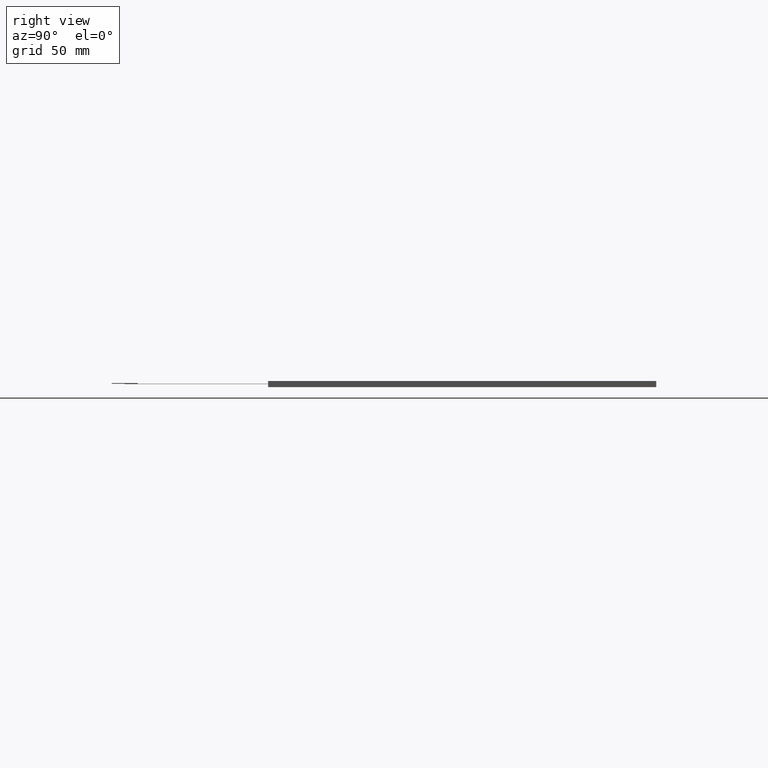
[diagram: clean part render]
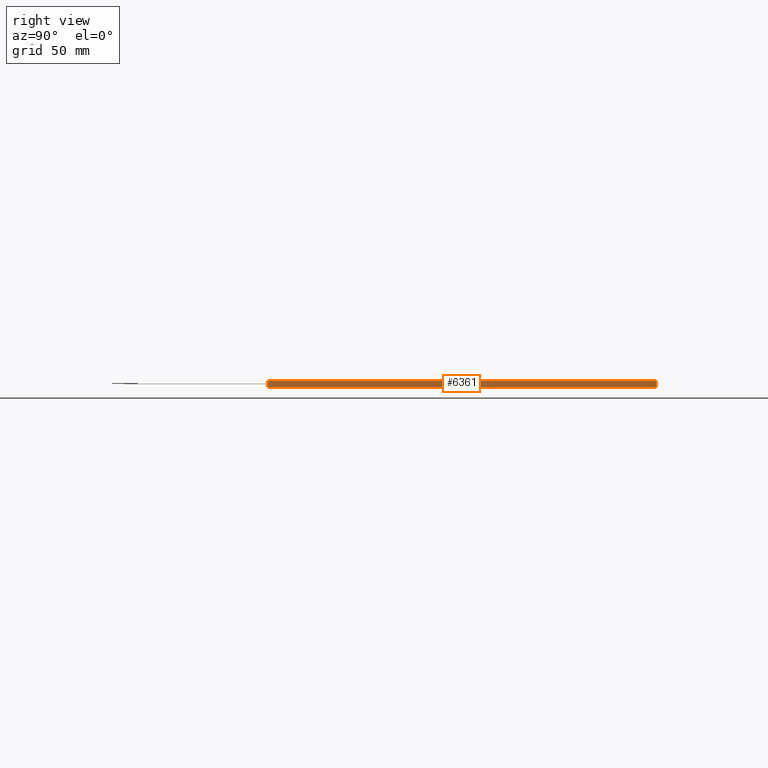
[diagram: same view with one face highlighted and labeled with its STEP entity id]
A machine part, right view. The second image highlights one B-rep face of the part: STEP entity #6361.
In plain terms, the highlighted planar face has unit normal (1, 0, 0).
Its self-contained STEP definition (entity closure, byte-faithful):
#423=PLANE('',#6691);
#725=FACE_OUTER_BOUND('',#1031,.T.);
#1031=EDGE_LOOP('',(#6043,#6044,#6045,#6046));
#1906=LINE('',#9961,#2786);
#1911=LINE('',#9971,#2791);
#1912=LINE('',#9974,#2792);
#1913=LINE('',#9975,#2793);
#2786=VECTOR('',#8176,10.);
#2791=VECTOR('',#8185,10.);
#2792=VECTOR('',#8188,10.);
#2793=VECTOR('',#8189,10.);
#3387=VERTEX_POINT('',#9954);
#3390=VERTEX_POINT('',#9959);
#3393=VERTEX_POINT('',#9969);
#3394=VERTEX_POINT('',#9973);
#4274=EDGE_CURVE('',#3390,#3387,#1906,.T.);
#4279=EDGE_CURVE('',#3390,#3393,#1911,.T.);
#4280=EDGE_CURVE('',#3394,#3393,#1912,.T.);
#4281=EDGE_CURVE('',#3387,#3394,#1913,.T.);
#6043=ORIENTED_EDGE('',*,*,#4274,.F.);
#6044=ORIENTED_EDGE('',*,*,#4279,.T.);
#6045=ORIENTED_EDGE('',*,*,#4280,.F.);
#6046=ORIENTED_EDGE('',*,*,#4281,.F.);
#6361=ADVANCED_FACE('',(#725),#423,.T.);
#6691=AXIS2_PLACEMENT_3D('',#9972,#8186,#8187);
#8176=DIRECTION('',(-1.1929864603091E-16,1.,0.));
#8185=DIRECTION('',(0.,0.,-1.));
#8186=DIRECTION('center_axis',(1.,1.1929864603091E-16,0.));
#8187=DIRECTION('ref_axis',(1.1929864603091E-16,-1.,0.));
#8188=DIRECTION('',(1.1929864603091E-16,-1.,0.));
#8189=DIRECTION('',(0.,0.,-1.));
#9954=CARTESIAN_POINT('',(93.25,71.9,0.));
#9959=CARTESIAN_POINT('',(93.25,-77.,0.));
#9961=CARTESIAN_POINT('',(93.25,-77.,0.));
#9969=CARTESIAN_POINT('',(93.25,-77.,-2.35));
#9971=CARTESIAN_POINT('',(93.25,-77.,0.));
#9972=CARTESIAN_POINT('Origin',(93.25,71.9,0.));
#9973=CARTESIAN_POINT('',(93.25,71.9,-2.35));
#9974=CARTESIAN_POINT('',(93.25,-77.,-2.35));
#9975=CARTESIAN_POINT('',(93.25,71.9,0.));